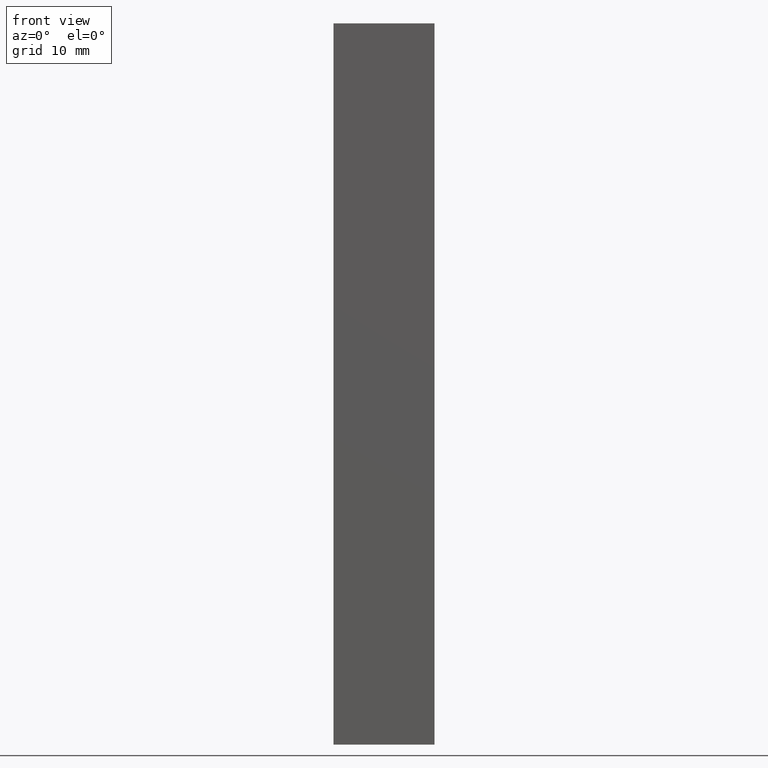
[diagram: clean part render]
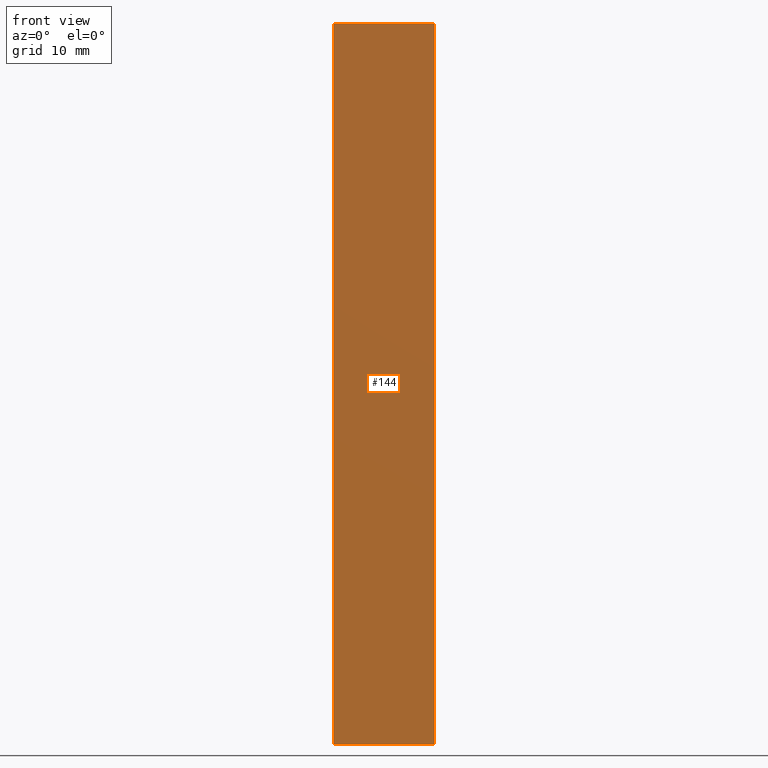
[diagram: same view with one face highlighted and labeled with its STEP entity id]
A machine part, front view. The second image highlights one B-rep face of the part: STEP entity #144.
In plain terms, the highlighted planar face has unit normal (0, -1, 0).
Its self-contained STEP definition (entity closure, byte-faithful):
#24=FACE_OUTER_BOUND('',#32,.T.);
#32=EDGE_LOOP('',(#122,#123,#124,#125));
#39=LINE('',#224,#53);
#44=LINE('',#237,#58);
#50=LINE('',#253,#64);
#51=LINE('',#255,#65);
#53=VECTOR('',#183,10.);
#58=VECTOR('',#194,10.);
#64=VECTOR('',#212,10.);
#65=VECTOR('',#215,10.);
#66=VERTEX_POINT('',#220);
#68=VERTEX_POINT('',#223);
#72=VERTEX_POINT('',#233);
#77=VERTEX_POINT('',#251);
#79=EDGE_CURVE('',#68,#66,#39,.T.);
#86=EDGE_CURVE('',#72,#68,#44,.T.);
#94=EDGE_CURVE('',#66,#77,#50,.T.);
#95=EDGE_CURVE('',#77,#72,#51,.T.);
#122=ORIENTED_EDGE('',*,*,#95,.T.);
#123=ORIENTED_EDGE('',*,*,#86,.T.);
#124=ORIENTED_EDGE('',*,*,#79,.T.);
#125=ORIENTED_EDGE('',*,*,#94,.T.);
#136=PLANE('',#176);
#144=ADVANCED_FACE('',(#24),#136,.T.);
#176=AXIS2_PLACEMENT_3D('',#254,#213,#214);
#183=DIRECTION('',(1.,1.98254111540206E-16,0.));
#194=DIRECTION('',(0.,0.,-1.));
#212=DIRECTION('',(0.,0.,1.));
#213=DIRECTION('center_axis',(1.98254111540207E-16,-1.,0.));
#214=DIRECTION('ref_axis',(0.,0.,-1.));
#215=DIRECTION('',(-1.,-1.98254111540206E-16,0.));
#220=CARTESIAN_POINT('',(7.,-4.75,-50.));
#223=CARTESIAN_POINT('',(-7.,-4.75,-50.));
#224=CARTESIAN_POINT('',(-7.,-4.75,-50.));
#233=CARTESIAN_POINT('',(-7.,-4.75,50.));
#237=CARTESIAN_POINT('',(-7.,-4.75,0.));
#251=CARTESIAN_POINT('',(7.,-4.75,50.));
#253=CARTESIAN_POINT('',(7.,-4.75,0.));
#254=CARTESIAN_POINT('Origin',(7.,-4.75,0.));
#255=CARTESIAN_POINT('',(-7.,-4.75,50.));